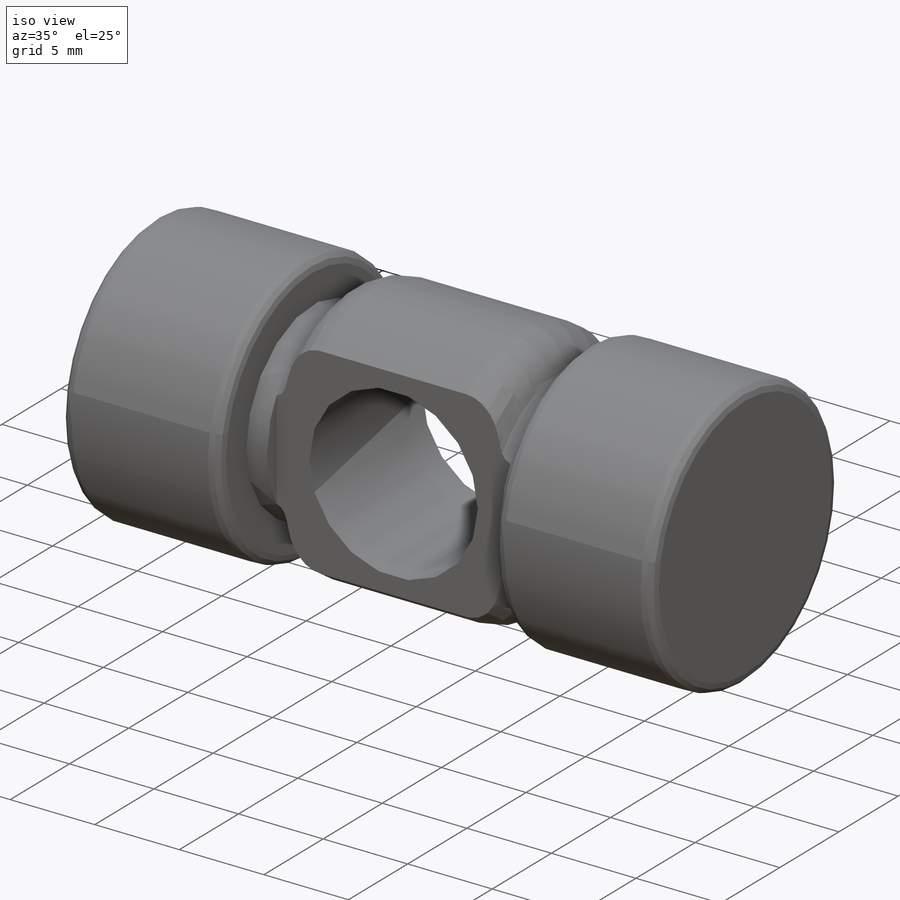
[diagram: iso view]
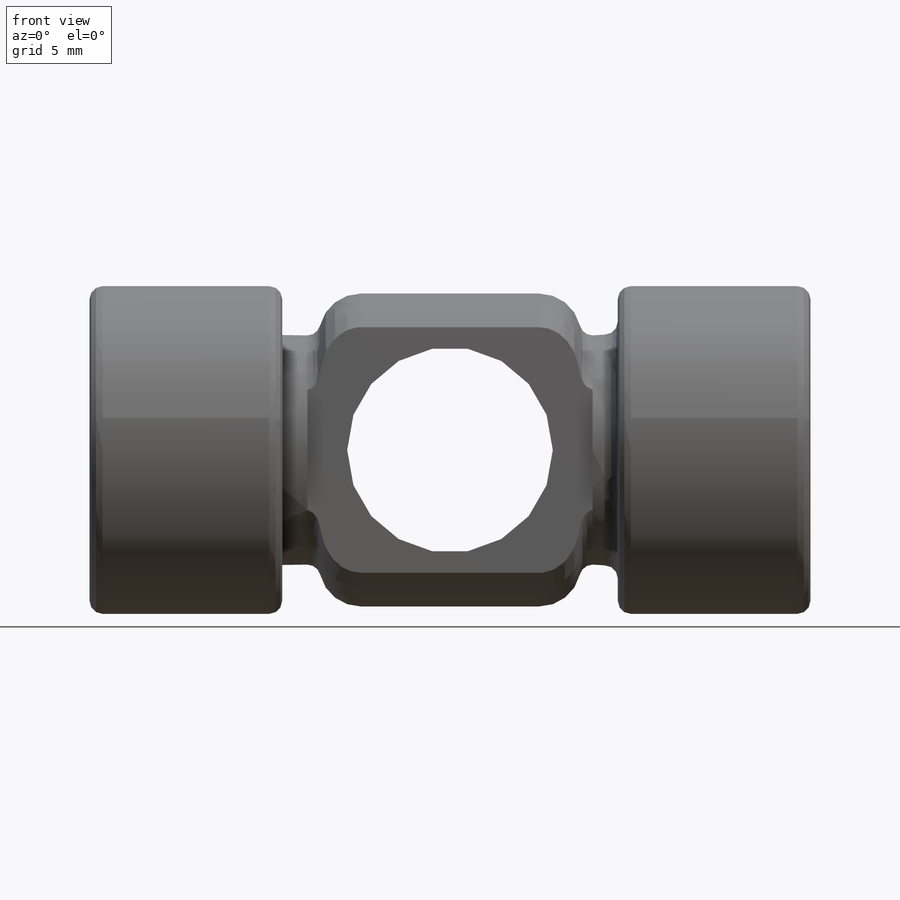
[diagram: front view]
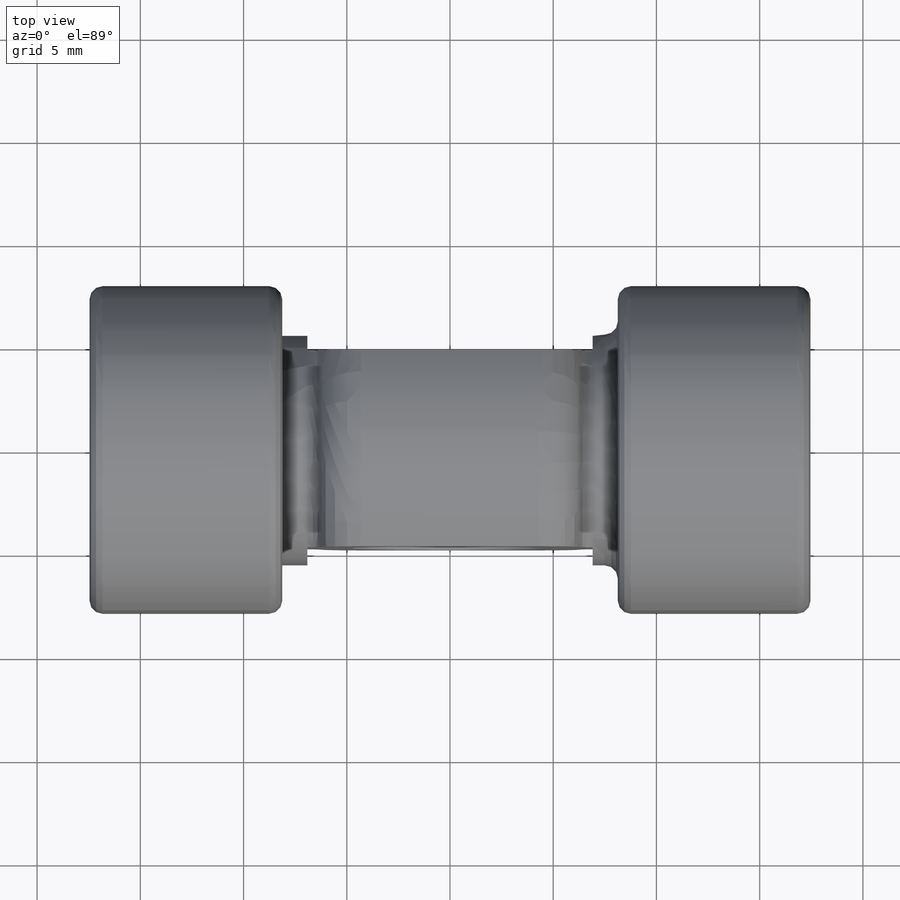
[diagram: top view]
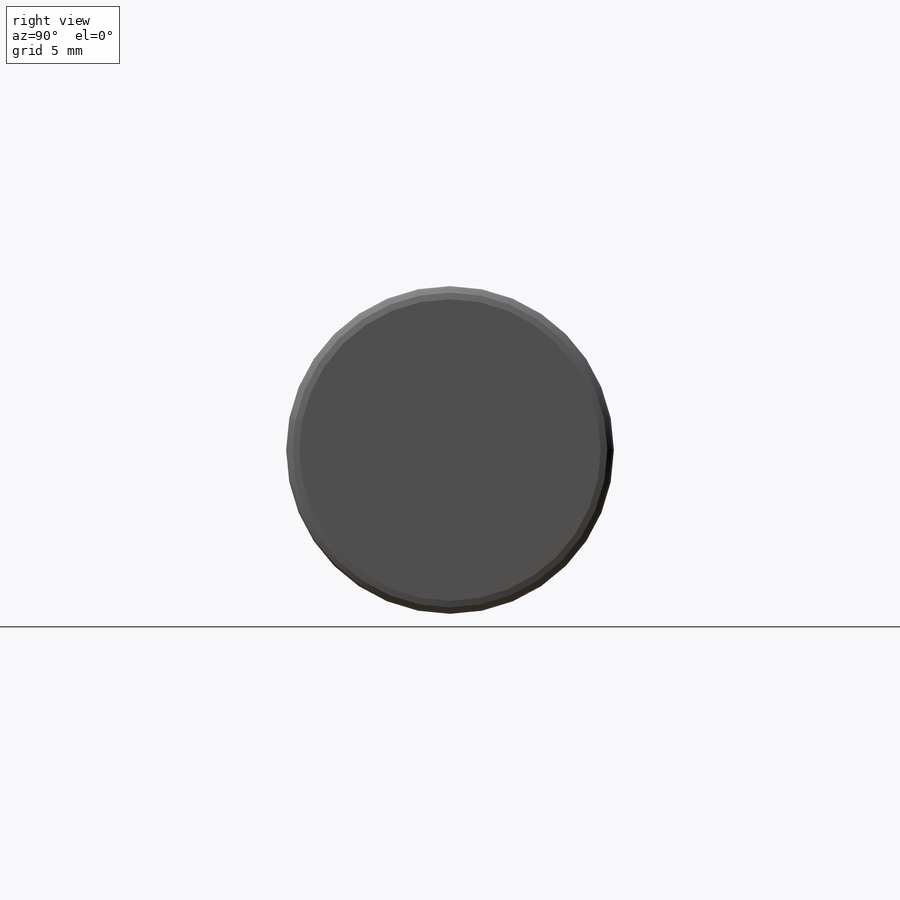
[diagram: right view]
SOLIDWORKS PART (.sldprt)
format: sldprt  version: not decoded by parser v0  size: 291,840 bytes
history: native  units: mm
features: sketch x3, cut_extrude x2, material x1, revolve x1, fillet x1, thread x1 (+11 scaffold rows collapsed)
feature tree (20):
  scaffold x11  (default folders/planes/origin — collapsed)
  material  "Material <not specified>"
  sketch  "Sketch1"  dims[c1.D1=34.925mm c1.D2=15.875mm c1.D3=~19.623332mm c2.D2=11.176mm c2.D3=15.875mm c2.D4=15.24mm c2.D5=16.256mm c2.D6=12.7mm c2.D7=7.7851mm]
  revolve  "Revolve1"  Angle=360deg
  fillet  "Fillet1"  Radius=0.635mm
  sketch  "Sketch2"  dims[D1=13.716mm D2=9.525mm]
  cut_extrude  "Cut-Extrude1"  [1 undecoded]
  sketch  "Sketch3"  dims[D1=9.9568mm]
  cut_extrude  "Cut-Extrude2"  [1 undecoded]
  thread  "Cosmetic Thread1"  Diameter=11.1125mm  [1 undecoded]
decode coverage: 6 of 8 modeling features carry decoded parameters
note: ~ marks probable driven/reference dimensions
note: 3 parameter values undecoded
note: suppression state not decoded; provenance and decode notes live in map.json
